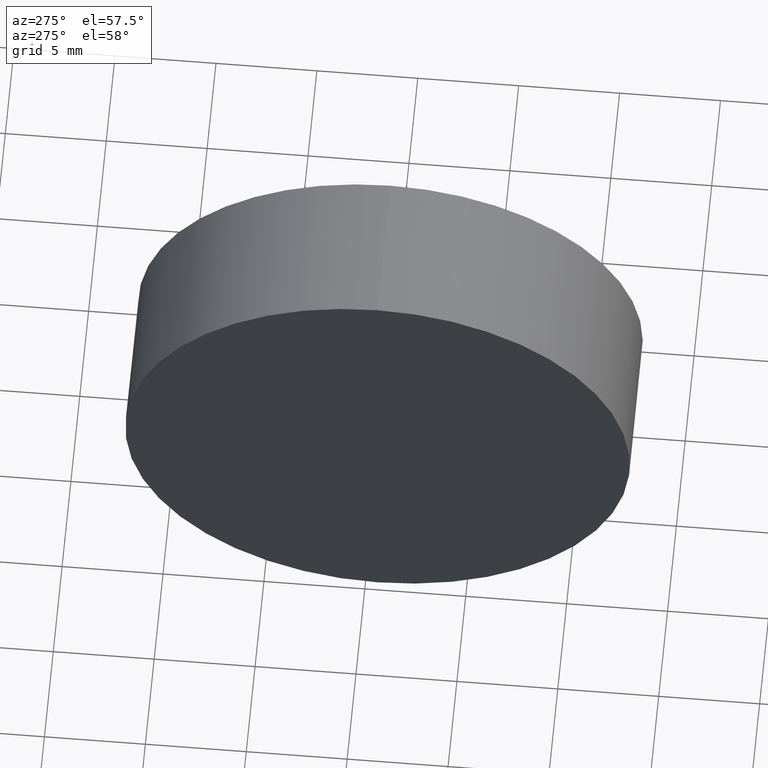
[diagram: clean part render]
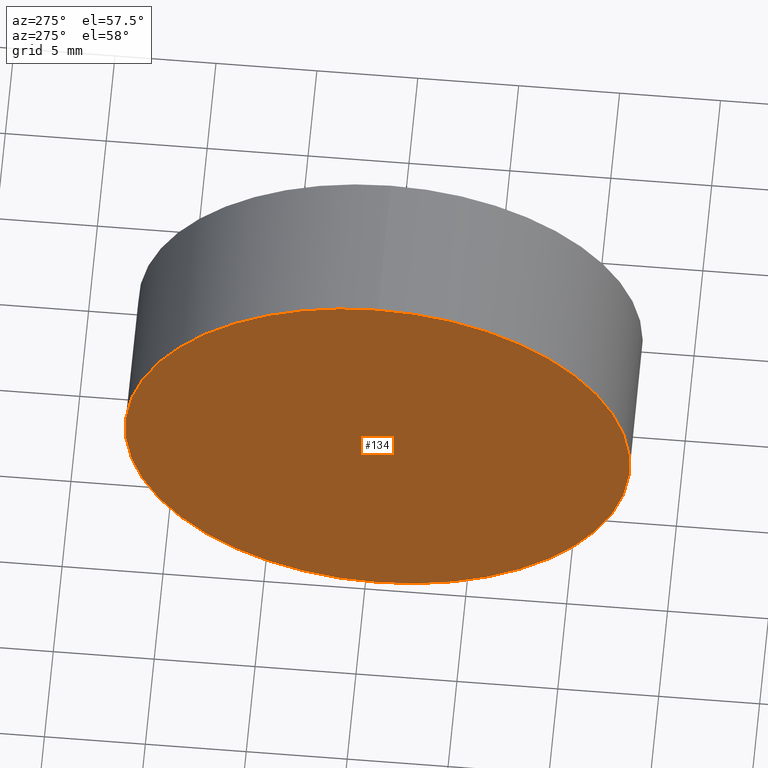
[diagram: same view with one face highlighted and labeled with its STEP entity id]
A machine part, auxiliary view. The second image highlights one B-rep face of the part: STEP entity #134.
In plain terms, the highlighted planar face has unit normal (1, 0, 0).
Its self-contained STEP definition (entity closure, byte-faithful):
#3 = CARTESIAN_POINT ( 'NONE',  ( 115.0926555349195200, 69.37802112337243400, 0.0000000000000000000 ) ) ;
#20 = DIRECTION ( 'NONE',  ( 1.000000000000000000, 0.0000000000000000000, 0.0000000000000000000 ) ) ;
#26 = EDGE_CURVE ( 'NONE', #186, #146, #129, .T. ) ;
#53 = AXIS2_PLACEMENT_3D ( 'NONE', #144, #106, #102 ) ;
#73 = ORIENTED_EDGE ( 'NONE', *, *, #26, .T. ) ;
#76 = CARTESIAN_POINT ( 'NONE',  ( 115.0926555349195200, 69.37802112337243400, 0.0000000000000000000 ) ) ;
#82 = CARTESIAN_POINT ( 'NONE',  ( 115.0926555349195200, 69.37802112337243400, -12.49999999999999600 ) ) ;
#89 = DIRECTION ( 'NONE',  ( 0.0000000000000000000, 0.0000000000000000000, 1.000000000000000000 ) ) ;
#99 = EDGE_CURVE ( 'NONE', #146, #186, #114, .T. ) ;
#102 = DIRECTION ( 'NONE',  ( 0.0000000000000000000, 0.0000000000000000000, 1.000000000000000000 ) ) ;
#106 = DIRECTION ( 'NONE',  ( -1.000000000000000000, -0.0000000000000000000, -0.0000000000000000000 ) ) ;
#109 = DIRECTION ( 'NONE',  ( -1.000000000000000000, -0.0000000000000000000, -0.0000000000000000000 ) ) ;
#110 = DIRECTION ( 'NONE',  ( 0.0000000000000000000, 0.0000000000000000000, -1.000000000000000000 ) ) ;
#114 = CIRCLE ( 'NONE', #135, 12.49999999999999600 ) ;
#121 = FACE_OUTER_BOUND ( 'NONE', #141, .T. ) ;
#123 = CARTESIAN_POINT ( 'NONE',  ( 115.0926555349195200, 69.37802112337243400, 12.49999999999999600 ) ) ;
#129 = CIRCLE ( 'NONE', #53, 12.49999999999999600 ) ;
#134 = ADVANCED_FACE ( 'NONE', ( #121 ), #163, .F. ) ;
#135 = AXIS2_PLACEMENT_3D ( 'NONE', #76, #109, #89 ) ;
#141 = EDGE_LOOP ( 'NONE', ( #154, #73 ) ) ;
#144 = CARTESIAN_POINT ( 'NONE',  ( 115.0926555349195200, 69.37802112337243400, 0.0000000000000000000 ) ) ;
#146 = VERTEX_POINT ( 'NONE', #123 ) ;
#153 = AXIS2_PLACEMENT_3D ( 'NONE', #3, #20, #110 ) ;
#154 = ORIENTED_EDGE ( 'NONE', *, *, #99, .T. ) ;
#163 = PLANE ( 'NONE',  #153 ) ;
#186 = VERTEX_POINT ( 'NONE', #82 ) ;